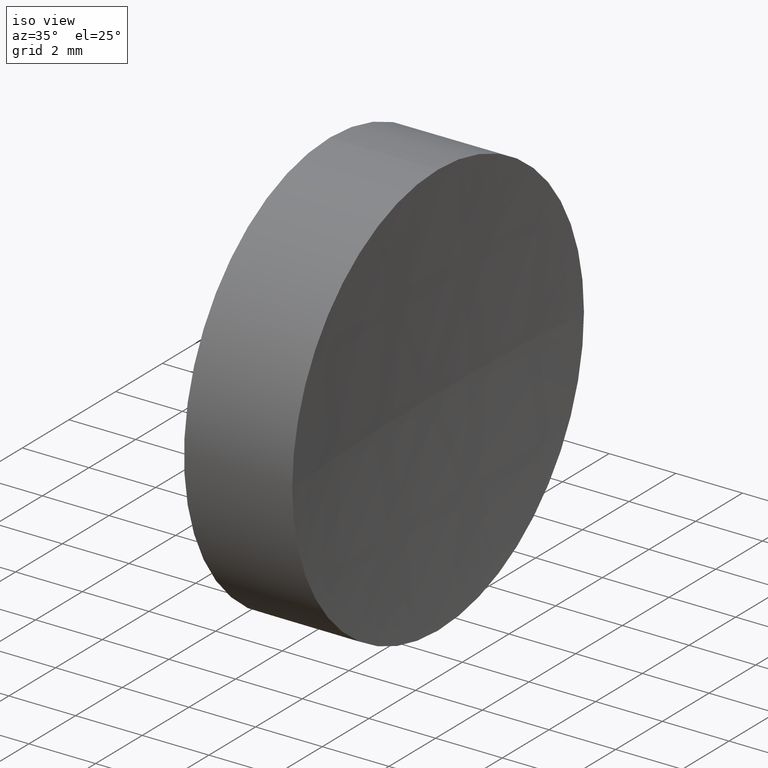
[diagram: clean part render]
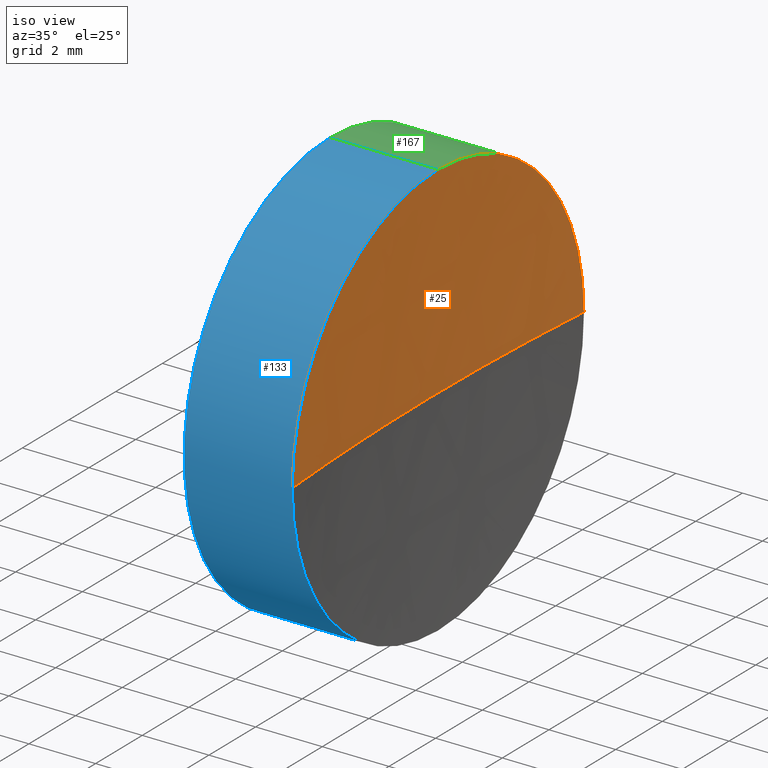
[diagram: same view with three faces highlighted in distinct colors, each labeled with its STEP entity id]
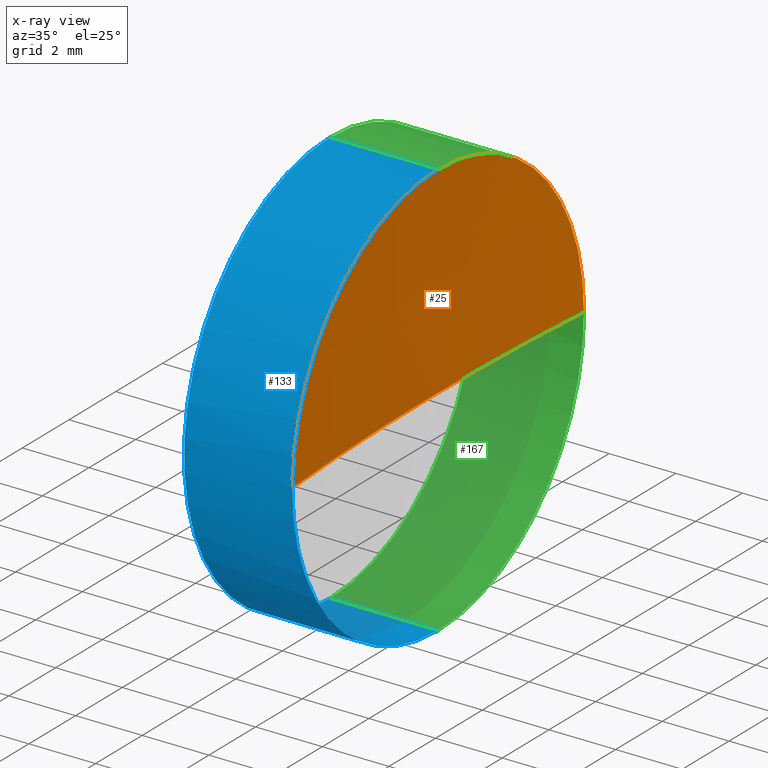
[diagram: x-ray of the same camera — body ghosted, the three highlighted faces saturated]
A machine part, iso view with three faces highlighted in distinct colors.
The next image is the same camera in x-ray (body ghosted, the three faces saturated) — at least one of them is partly hidden behind the body in this view.
Their STEP definitions:

[orange] entity #25 — the highlighted spherical surface has radius 80 mm.
#1 = AXIS2_PLACEMENT_3D ( 'NONE', #144, #91, #116 ) ;
#10 = VERTEX_POINT ( 'NONE', #141 ) ;
#20 = ORIENTED_EDGE ( 'NONE', *, *, #174, .F. ) ;
#25 = ADVANCED_FACE ( 'NONE', ( #169 ), #105, .F. ) ;
#27 = CIRCLE ( 'NONE', #123, 6.249999999999998200 ) ;
#33 = DIRECTION ( 'NONE',  ( -1.000000000000000000, -0.0000000000000000000, -0.0000000000000000000 ) ) ;
#37 = CARTESIAN_POINT ( 'NONE',  ( 60.79084220315108000, 40.93901056168626700, 0.0000000000000000000 ) ) ;
#40 = DIRECTION ( 'NONE',  ( 0.0000000000000000000, 0.0000000000000000000, 1.000000000000000000 ) ) ;
#42 = CIRCLE ( 'NONE', #66, 79.99999999999998600 ) ;
#43 = EDGE_LOOP ( 'NONE', ( #20, #85, #78, #153 ) ) ;
#45 = VERTEX_POINT ( 'NONE', #50 ) ;
#50 = CARTESIAN_POINT ( 'NONE',  ( 60.79084220315108000, 28.43901056168611800, -7.654042494671008900E-016 ) ) ;
#55 = DIRECTION ( 'NONE',  ( 0.0000000000000000000, 0.0000000000000000000, 1.000000000000000000 ) ) ;
#66 = AXIS2_PLACEMENT_3D ( 'NONE', #176, #55, #118 ) ;
#78 = ORIENTED_EDGE ( 'NONE', *, *, #108, .F. ) ;
#80 = CARTESIAN_POINT ( 'NONE',  ( 60.79084220315108000, 34.68901056168621700, 0.0000000000000000000 ) ) ;
#83 = EDGE_CURVE ( 'NONE', #45, #10, #186, .T. ) ;
#85 = ORIENTED_EDGE ( 'NONE', *, *, #83, .T. ) ;
#91 = DIRECTION ( 'NONE',  ( 0.0000000000000000000, 0.0000000000000000000, -1.000000000000000000 ) ) ;
#105 = SPHERICAL_SURFACE ( 'NONE', #1, 80.00000000000000000 ) ;
#107 = DIRECTION ( 'NONE',  ( 0.0000000000000000000, 0.0000000000000000000, 1.000000000000000000 ) ) ;
#108 = EDGE_CURVE ( 'NONE', #122, #10, #42, .T. ) ;
#113 = VERTEX_POINT ( 'NONE', #127 ) ;
#116 = DIRECTION ( 'NONE',  ( 0.0000000000000000000, 1.000000000000000000, 0.0000000000000000000 ) ) ;
#118 = DIRECTION ( 'NONE',  ( 1.000000000000000000, 0.0000000000000000000, 0.0000000000000000000 ) ) ;
#122 = VERTEX_POINT ( 'NONE', #37 ) ;
#123 = AXIS2_PLACEMENT_3D ( 'NONE', #80, #181, #40 ) ;
#127 = CARTESIAN_POINT ( 'NONE',  ( 60.79084220315108000, 34.68901056168621700, 6.249999999999998200 ) ) ;
#141 = CARTESIAN_POINT ( 'NONE',  ( 60.54632790789742100, 34.68901056168616700, 0.0000000000000000000 ) ) ;
#144 = CARTESIAN_POINT ( 'NONE',  ( 140.5463279078974200, 34.68901056168616000, 0.0000000000000000000 ) ) ;
#146 = CARTESIAN_POINT ( 'NONE',  ( 140.5463279078974200, 34.68901056168616000, 0.0000000000000000000 ) ) ;
#152 = CIRCLE ( 'NONE', #184, 6.249999999999998200 ) ;
#153 = ORIENTED_EDGE ( 'NONE', *, *, #165, .F. ) ;
#157 = CARTESIAN_POINT ( 'NONE',  ( 60.79084220315108000, 34.68901056168621700, 0.0000000000000000000 ) ) ;
#162 = DIRECTION ( 'NONE',  ( 0.0000000000000000000, 1.224646799147353200E-016, -1.000000000000000000 ) ) ;
#164 = DIRECTION ( 'NONE',  ( 0.0000000000000000000, 1.000000000000000000, 1.224646799147353200E-016 ) ) ;
#165 = EDGE_CURVE ( 'NONE', #113, #122, #27, .T. ) ;
#169 = FACE_OUTER_BOUND ( 'NONE', #43, .T. ) ;
#171 = AXIS2_PLACEMENT_3D ( 'NONE', #146, #162, #164 ) ;
#174 = EDGE_CURVE ( 'NONE', #45, #113, #152, .T. ) ;
#176 = CARTESIAN_POINT ( 'NONE',  ( 140.5463279078974200, 34.68901056168616000, 0.0000000000000000000 ) ) ;
#181 = DIRECTION ( 'NONE',  ( -1.000000000000000000, -0.0000000000000000000, -0.0000000000000000000 ) ) ;
#184 = AXIS2_PLACEMENT_3D ( 'NONE', #157, #33, #107 ) ;
#186 = CIRCLE ( 'NONE', #171, 80.00000000000000000 ) ;

[blue] entity #133 — the highlighted cylindrical surface (partial cylindrical patch) has radius 6.25 mm, axis along (-1, -0, -0).
#2 = DIRECTION ( 'NONE',  ( -1.000000000000000000, -0.0000000000000000000, -0.0000000000000000000 ) ) ;
#4 = CARTESIAN_POINT ( 'NONE',  ( 54.49257150108255100, 34.68901056168621700, -6.249999999999998200 ) ) ;
#7 = DIRECTION ( 'NONE',  ( 0.0000000000000000000, 0.0000000000000000000, 1.000000000000000000 ) ) ;
#8 = CARTESIAN_POINT ( 'NONE',  ( 60.79084220315108000, 34.68901056168621700, -6.249999999999998200 ) ) ;
#14 = ORIENTED_EDGE ( 'NONE', *, *, #63, .T. ) ;
#17 = EDGE_CURVE ( 'NONE', #75, #51, #39, .T. ) ;
#19 = CARTESIAN_POINT ( 'NONE',  ( 57.54632776745975800, 34.68901056168621700, 6.249999999999998200 ) ) ;
#21 = CARTESIAN_POINT ( 'NONE',  ( 57.54632776745975800, 34.68901056168621700, 0.0000000000000000000 ) ) ;
#22 = DIRECTION ( 'NONE',  ( 0.0000000000000000000, 0.0000000000000000000, 1.000000000000000000 ) ) ;
#26 = ORIENTED_EDGE ( 'NONE', *, *, #174, .T. ) ;
#28 = EDGE_CURVE ( 'NONE', #113, #29, #183, .T. ) ;
#29 = VERTEX_POINT ( 'NONE', #19 ) ;
#32 = VECTOR ( 'NONE', #2, 1000.000000000000000 ) ;
#33 = DIRECTION ( 'NONE',  ( -1.000000000000000000, -0.0000000000000000000, -0.0000000000000000000 ) ) ;
#38 = CARTESIAN_POINT ( 'NONE',  ( 54.49257150108255100, 34.68901056168621700, 0.0000000000000000000 ) ) ;
#39 = LINE ( 'NONE', #4, #140 ) ;
#45 = VERTEX_POINT ( 'NONE', #50 ) ;
#48 = CYLINDRICAL_SURFACE ( 'NONE', #177, 6.249999999999998200 ) ;
#50 = CARTESIAN_POINT ( 'NONE',  ( 60.79084220315108000, 28.43901056168611800, -7.654042494671008900E-016 ) ) ;
#51 = VERTEX_POINT ( 'NONE', #76 ) ;
#52 = CARTESIAN_POINT ( 'NONE',  ( 54.49257150108255100, 34.68901056168621700, 6.249999999999998200 ) ) ;
#63 = EDGE_CURVE ( 'NONE', #75, #45, #100, .T. ) ;
#69 = DIRECTION ( 'NONE',  ( -1.000000000000000000, -0.0000000000000000000, -0.0000000000000000000 ) ) ;
#75 = VERTEX_POINT ( 'NONE', #8 ) ;
#76 = CARTESIAN_POINT ( 'NONE',  ( 57.54632776745975800, 34.68901056168621700, -6.249999999999998200 ) ) ;
#86 = AXIS2_PLACEMENT_3D ( 'NONE', #21, #104, #22 ) ;
#87 = AXIS2_PLACEMENT_3D ( 'NONE', #175, #89, #7 ) ;
#89 = DIRECTION ( 'NONE',  ( -1.000000000000000000, -0.0000000000000000000, -0.0000000000000000000 ) ) ;
#97 = ORIENTED_EDGE ( 'NONE', *, *, #154, .F. ) ;
#100 = CIRCLE ( 'NONE', #87, 6.249999999999998200 ) ;
#104 = DIRECTION ( 'NONE',  ( -1.000000000000000000, -0.0000000000000000000, -0.0000000000000000000 ) ) ;
#107 = DIRECTION ( 'NONE',  ( 0.0000000000000000000, 0.0000000000000000000, 1.000000000000000000 ) ) ;
#113 = VERTEX_POINT ( 'NONE', #127 ) ;
#115 = ORIENTED_EDGE ( 'NONE', *, *, #17, .F. ) ;
#117 = EDGE_LOOP ( 'NONE', ( #115, #14, #26, #139, #97 ) ) ;
#127 = CARTESIAN_POINT ( 'NONE',  ( 60.79084220315108000, 34.68901056168621700, 6.249999999999998200 ) ) ;
#130 = DIRECTION ( 'NONE',  ( 0.0000000000000000000, 0.0000000000000000000, 1.000000000000000000 ) ) ;
#132 = FACE_OUTER_BOUND ( 'NONE', #117, .T. ) ;
#133 = ADVANCED_FACE ( 'NONE', ( #132 ), #48, .T. ) ;
#139 = ORIENTED_EDGE ( 'NONE', *, *, #28, .T. ) ;
#140 = VECTOR ( 'NONE', #69, 1000.000000000000000 ) ;
#142 = CIRCLE ( 'NONE', #86, 6.249999999999998200 ) ;
#152 = CIRCLE ( 'NONE', #184, 6.249999999999998200 ) ;
#154 = EDGE_CURVE ( 'NONE', #51, #29, #142, .T. ) ;
#157 = CARTESIAN_POINT ( 'NONE',  ( 60.79084220315108000, 34.68901056168621700, 0.0000000000000000000 ) ) ;
#174 = EDGE_CURVE ( 'NONE', #45, #113, #152, .T. ) ;
#175 = CARTESIAN_POINT ( 'NONE',  ( 60.79084220315108000, 34.68901056168621700, 0.0000000000000000000 ) ) ;
#177 = AXIS2_PLACEMENT_3D ( 'NONE', #38, #179, #130 ) ;
#179 = DIRECTION ( 'NONE',  ( -1.000000000000000000, -0.0000000000000000000, -0.0000000000000000000 ) ) ;
#183 = LINE ( 'NONE', #52, #32 ) ;
#184 = AXIS2_PLACEMENT_3D ( 'NONE', #157, #33, #107 ) ;

[green] entity #167 — the highlighted cylindrical surface (partial cylindrical patch) has radius 6.25 mm, axis along (-1, -0, -0).
#2 = DIRECTION ( 'NONE',  ( -1.000000000000000000, -0.0000000000000000000, -0.0000000000000000000 ) ) ;
#4 = CARTESIAN_POINT ( 'NONE',  ( 54.49257150108255100, 34.68901056168621700, -6.249999999999998200 ) ) ;
#6 = ORIENTED_EDGE ( 'NONE', *, *, #17, .T. ) ;
#8 = CARTESIAN_POINT ( 'NONE',  ( 60.79084220315108000, 34.68901056168621700, -6.249999999999998200 ) ) ;
#9 = CYLINDRICAL_SURFACE ( 'NONE', #12, 6.249999999999998200 ) ;
#11 = DIRECTION ( 'NONE',  ( 0.0000000000000000000, 0.0000000000000000000, 1.000000000000000000 ) ) ;
#12 = AXIS2_PLACEMENT_3D ( 'NONE', #70, #106, #148 ) ;
#17 = EDGE_CURVE ( 'NONE', #75, #51, #39, .T. ) ;
#18 = DIRECTION ( 'NONE',  ( -1.000000000000000000, -0.0000000000000000000, -0.0000000000000000000 ) ) ;
#19 = CARTESIAN_POINT ( 'NONE',  ( 57.54632776745975800, 34.68901056168621700, 6.249999999999998200 ) ) ;
#23 = CARTESIAN_POINT ( 'NONE',  ( 57.54632776745975800, 34.68901056168621700, 0.0000000000000000000 ) ) ;
#27 = CIRCLE ( 'NONE', #123, 6.249999999999998200 ) ;
#28 = EDGE_CURVE ( 'NONE', #113, #29, #183, .T. ) ;
#29 = VERTEX_POINT ( 'NONE', #19 ) ;
#32 = VECTOR ( 'NONE', #2, 1000.000000000000000 ) ;
#37 = CARTESIAN_POINT ( 'NONE',  ( 60.79084220315108000, 40.93901056168626700, 0.0000000000000000000 ) ) ;
#39 = LINE ( 'NONE', #4, #140 ) ;
#40 = DIRECTION ( 'NONE',  ( 0.0000000000000000000, 0.0000000000000000000, 1.000000000000000000 ) ) ;
#47 = ORIENTED_EDGE ( 'NONE', *, *, #79, .T. ) ;
#51 = VERTEX_POINT ( 'NONE', #76 ) ;
#52 = CARTESIAN_POINT ( 'NONE',  ( 54.49257150108255100, 34.68901056168621700, 6.249999999999998200 ) ) ;
#60 = ORIENTED_EDGE ( 'NONE', *, *, #165, .T. ) ;
#68 = FACE_OUTER_BOUND ( 'NONE', #135, .T. ) ;
#69 = DIRECTION ( 'NONE',  ( -1.000000000000000000, -0.0000000000000000000, -0.0000000000000000000 ) ) ;
#70 = CARTESIAN_POINT ( 'NONE',  ( 54.49257150108255100, 34.68901056168621700, 0.0000000000000000000 ) ) ;
#75 = VERTEX_POINT ( 'NONE', #8 ) ;
#76 = CARTESIAN_POINT ( 'NONE',  ( 57.54632776745975800, 34.68901056168621700, -6.249999999999998200 ) ) ;
#77 = DIRECTION ( 'NONE',  ( -1.000000000000000000, -0.0000000000000000000, -0.0000000000000000000 ) ) ;
#79 = EDGE_CURVE ( 'NONE', #122, #75, #178, .T. ) ;
#80 = CARTESIAN_POINT ( 'NONE',  ( 60.79084220315108000, 34.68901056168621700, 0.0000000000000000000 ) ) ;
#84 = ORIENTED_EDGE ( 'NONE', *, *, #28, .F. ) ;
#98 = CARTESIAN_POINT ( 'NONE',  ( 60.79084220315108000, 34.68901056168621700, 0.0000000000000000000 ) ) ;
#106 = DIRECTION ( 'NONE',  ( -1.000000000000000000, -0.0000000000000000000, -0.0000000000000000000 ) ) ;
#112 = CIRCLE ( 'NONE', #163, 6.249999999999998200 ) ;
#113 = VERTEX_POINT ( 'NONE', #127 ) ;
#122 = VERTEX_POINT ( 'NONE', #37 ) ;
#123 = AXIS2_PLACEMENT_3D ( 'NONE', #80, #181, #40 ) ;
#126 = DIRECTION ( 'NONE',  ( 0.0000000000000000000, 0.0000000000000000000, 1.000000000000000000 ) ) ;
#127 = CARTESIAN_POINT ( 'NONE',  ( 60.79084220315108000, 34.68901056168621700, 6.249999999999998200 ) ) ;
#135 = EDGE_LOOP ( 'NONE', ( #47, #6, #160, #84, #60 ) ) ;
#140 = VECTOR ( 'NONE', #69, 1000.000000000000000 ) ;
#148 = DIRECTION ( 'NONE',  ( 0.0000000000000000000, 0.0000000000000000000, 1.000000000000000000 ) ) ;
#156 = AXIS2_PLACEMENT_3D ( 'NONE', #98, #18, #126 ) ;
#160 = ORIENTED_EDGE ( 'NONE', *, *, #173, .F. ) ;
#163 = AXIS2_PLACEMENT_3D ( 'NONE', #23, #77, #11 ) ;
#165 = EDGE_CURVE ( 'NONE', #113, #122, #27, .T. ) ;
#167 = ADVANCED_FACE ( 'NONE', ( #68 ), #9, .T. ) ;
#173 = EDGE_CURVE ( 'NONE', #29, #51, #112, .T. ) ;
#178 = CIRCLE ( 'NONE', #156, 6.249999999999998200 ) ;
#181 = DIRECTION ( 'NONE',  ( -1.000000000000000000, -0.0000000000000000000, -0.0000000000000000000 ) ) ;
#183 = LINE ( 'NONE', #52, #32 ) ;